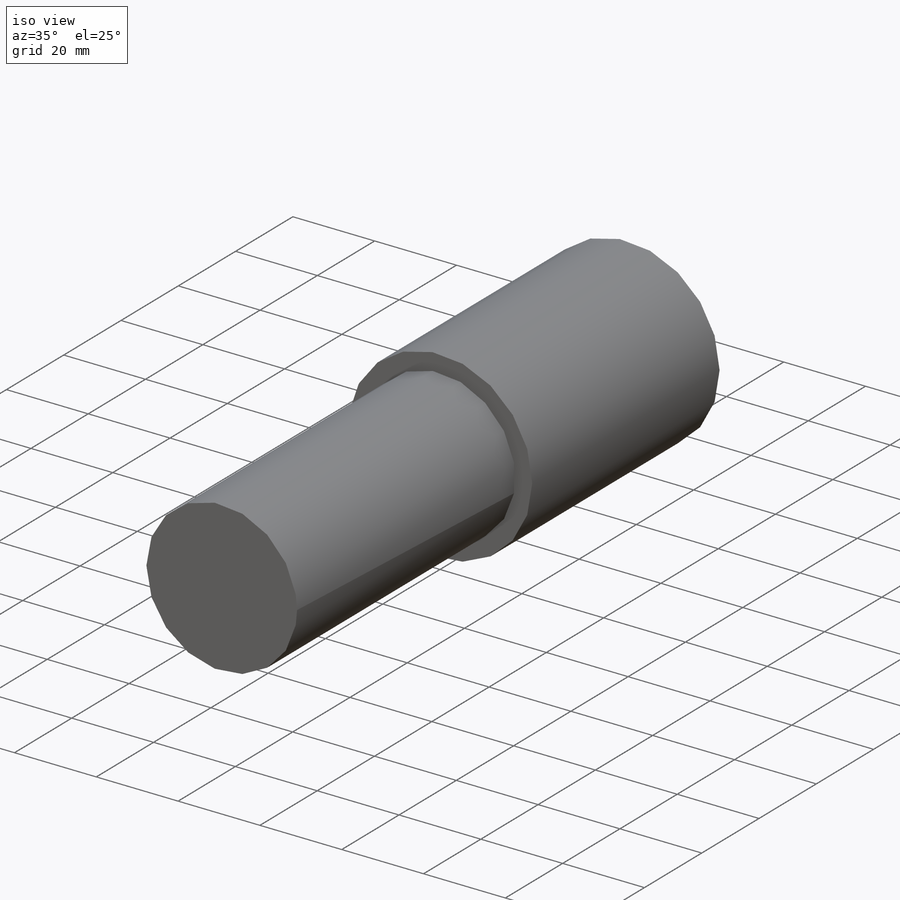
[diagram: iso view]
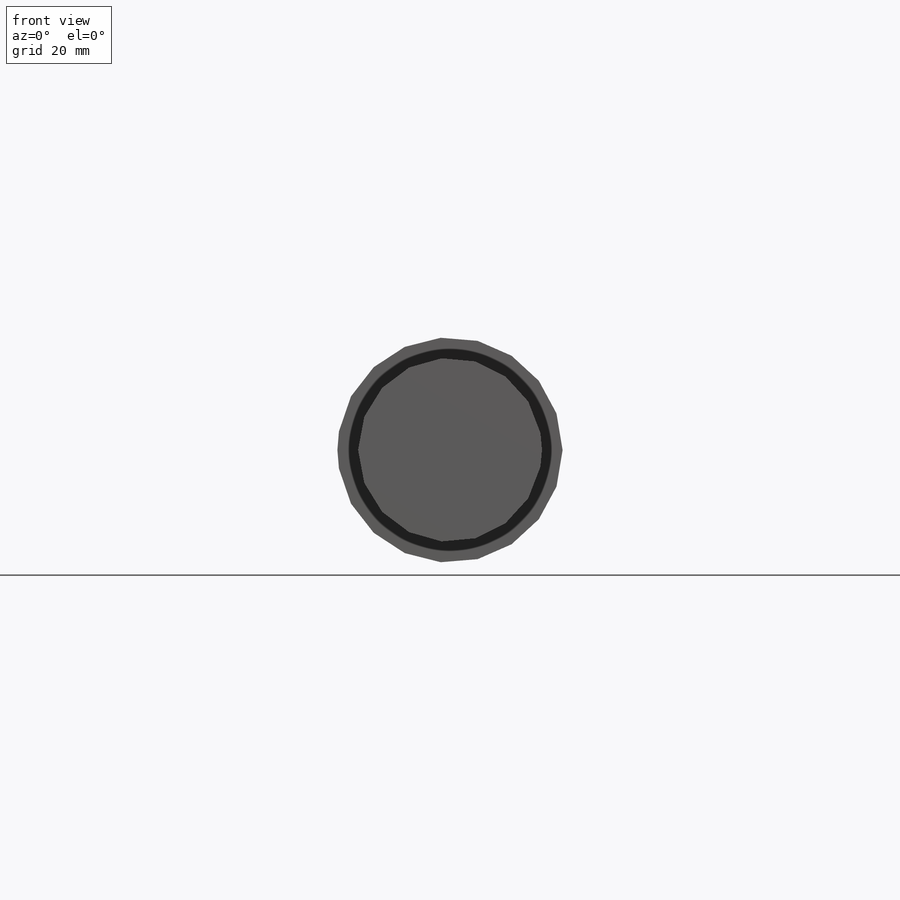
[diagram: front view]
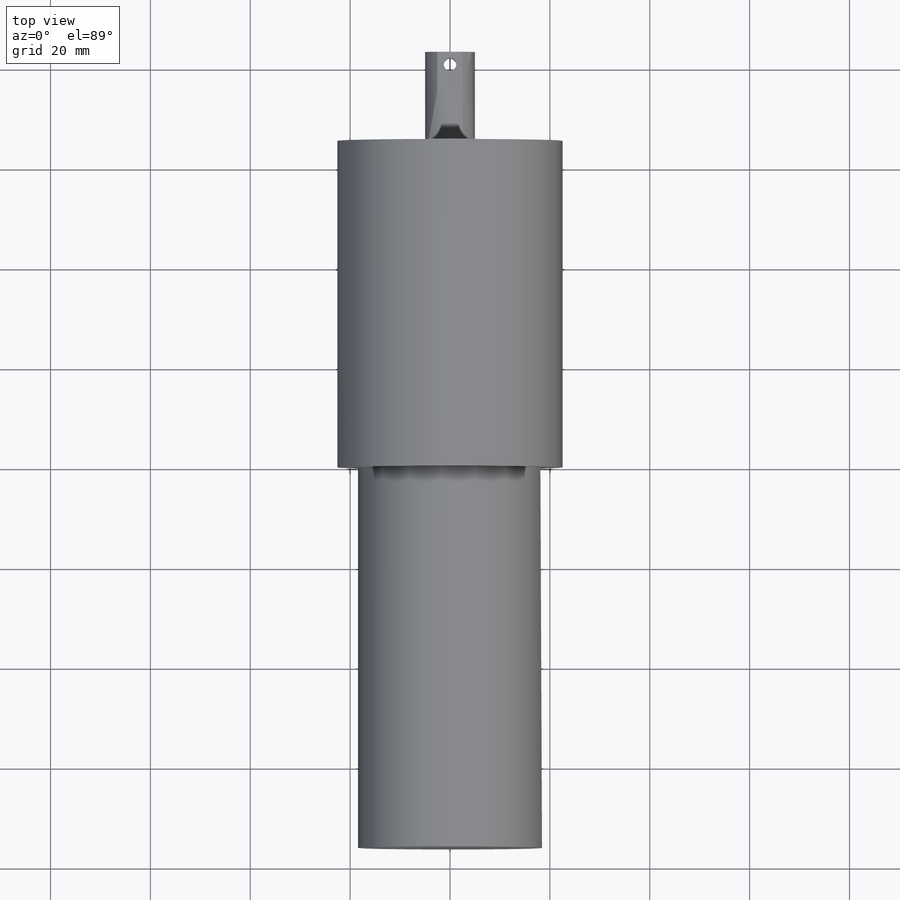
[diagram: top view]
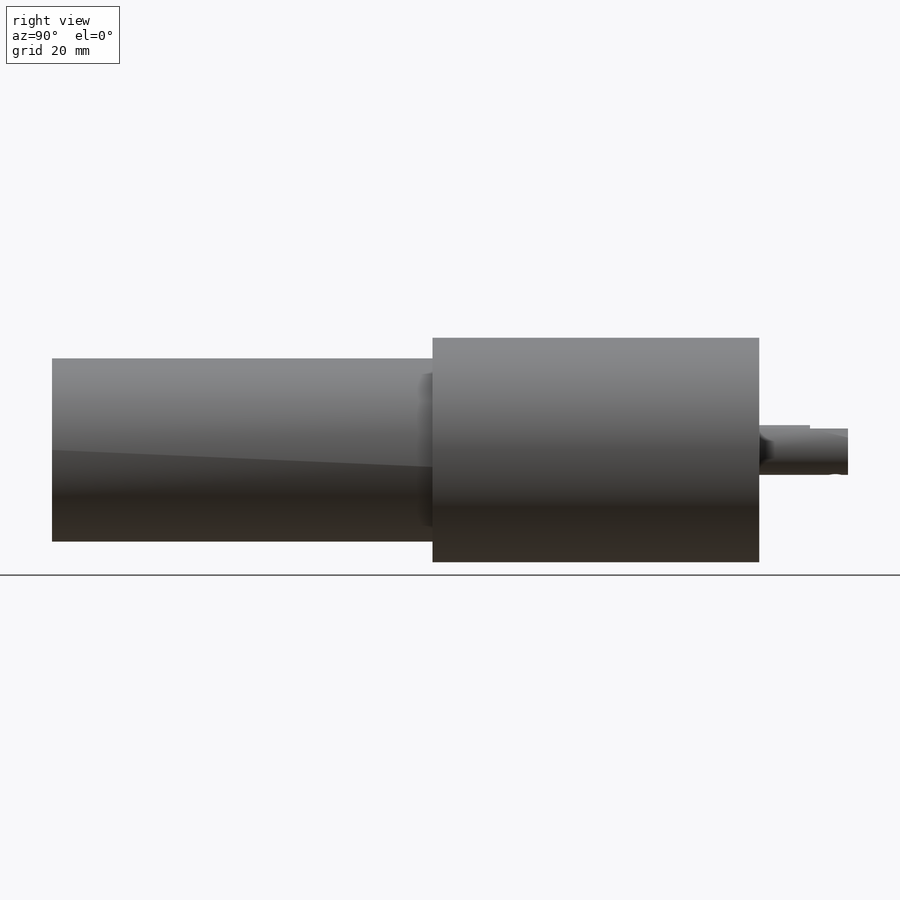
[diagram: right view]
SOLIDWORKS PART (.sldprt)
format: sldprt  version: not decoded by parser v0  size: 249,856 bytes
history: native  units: mm
features: sketch x5, extrude x3, cut_extrude x2, material x1 (+13 scaffold rows collapsed)
feature tree (24):
  scaffold x13  (default folders/planes/origin — collapsed)
  material  "Material <not specified>"
  sketch  "Sketch1"  dims[D1=36.83mm]
  extrude  "Boss-Extrude1"  Depth=76.2mm
  sketch  "Sketch2"  dims[D1=45.0977mm]
  extrude  "Boss-Extrude2"  Depth=65.4177mm
  sketch  "Sketch3"  dims[D1=9.9822mm]
  extrude  "Boss-Extrude3"  Depth=17.78mm
  sketch  "Sketch5"  dims[D1=5.08mm]
  cut_extrude  "Cut-Extrude1"  Depth=7.62mm
  sketch  "Sketch6"  dims[D1=2.54mm D2=2.54mm D3=2.54mm]
  cut_extrude  "Cut-Extrude2"  [1 undecoded]
decode coverage: 9 of 10 modeling features carry decoded parameters
note: 1 parameter value undecoded
note: suppression state not decoded; provenance and decode notes live in map.json
